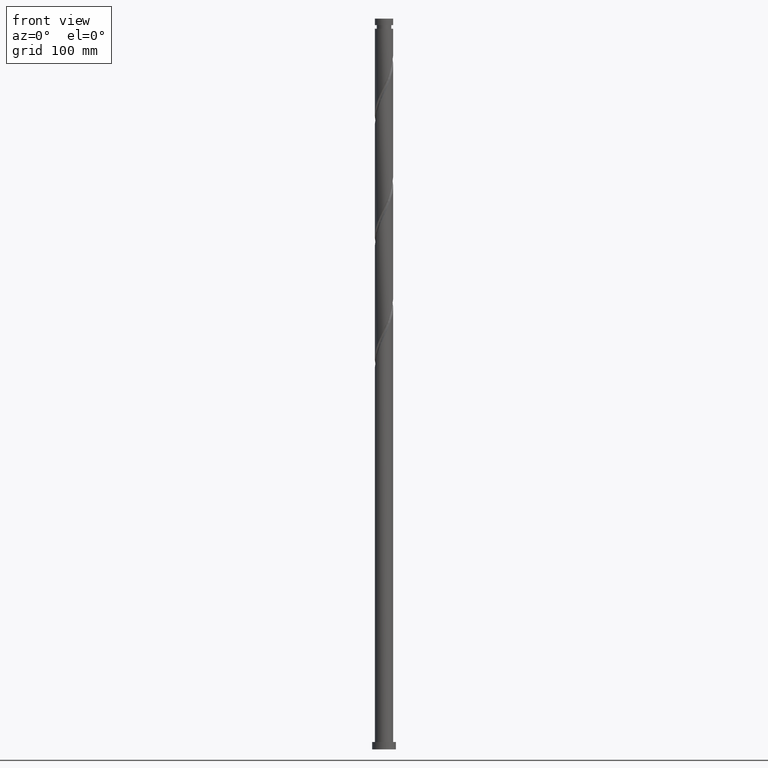
[diagram: clean part render]
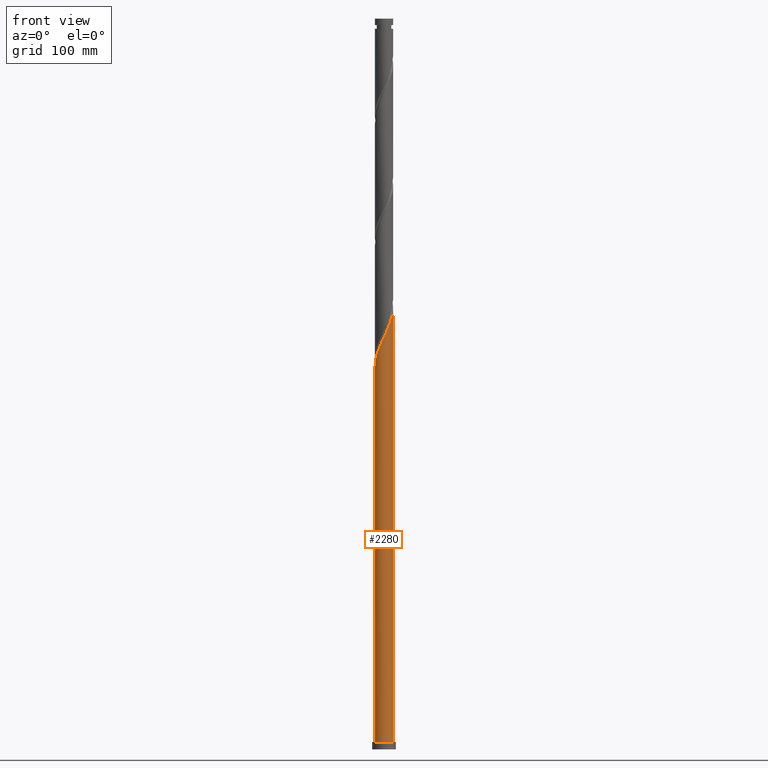
[diagram: same view with one face highlighted and labeled with its STEP entity id]
A machine part, front view. The second image highlights one B-rep face of the part: STEP entity #2280.
In plain terms, the highlighted cylindrical surface (edge-blend (fillet) strip) has radius 10 mm, axis along (-0, -0, -1).
Its self-contained STEP definition (entity closure, byte-faithful):
#8 = CARTESIAN_POINT ( 'NONE',  ( -9.833586684089031138, -1.996794941299504966, 422.2317623345016386 ) ) ;
#19 = CARTESIAN_POINT ( 'NONE',  ( -10.00000000000001421, 1.612300956158166349E-15, 417.9798301337130511 ) ) ;
#84 = DIRECTION ( 'NONE',  ( -0.000000000000000000, -0.000000000000000000, -1.000000000000000000 ) ) ;
#117 = CARTESIAN_POINT ( 'NONE',  ( -10.00000000000000178, 0.000000000000000000, 8.000000000000000000 ) ) ;
#194 = CARTESIAN_POINT ( 'NONE',  ( 1.989974874213249700, -9.800000000000007816, 455.5650956678352372 ) ) ;
#197 = CIRCLE ( 'NONE', #385, 10.00000000000000178 ) ;
#249 = CARTESIAN_POINT ( 'NONE',  ( 10.00000000000000178, 1.224646799147353454E-15, 800.0000000000000000 ) ) ;
#256 = CARTESIAN_POINT ( 'NONE',  ( 10.00000000000000178, 1.224646799147353454E-15, 8.000000000000000000 ) ) ;
#277 = LINE ( 'NONE', #836, #1109 ) ;
#334 = DIRECTION ( 'NONE',  ( 1.000000000000000000, 0.000000000000000000, 0.000000000000000000 ) ) ;
#357 = CARTESIAN_POINT ( 'NONE',  ( 9.988632557599636641, -0.4766756017049229577, 483.6352711064316736 ) ) ;
#385 = AXIS2_PLACEMENT_3D ( 'NONE', #2324, #1781, #334 ) ;
#392 = CARTESIAN_POINT ( 'NONE',  ( 4.349696364606918664, -9.042497367808181252, 460.8282535625720016 ) ) ;
#402 = CARTESIAN_POINT ( 'NONE',  ( 7.589654370281420093, -6.511309126409864589, 469.6001833871334838 ) ) ;
#479 = CARTESIAN_POINT ( 'NONE',  ( 10.00000000000001421, -3.433603888114613474E-15, 484.6464968003797935 ) ) ;
#542 = EDGE_CURVE ( 'NONE', #1594, #1086, #2094, .T. ) ;
#548 = CARTESIAN_POINT ( 'NONE',  ( -8.652417576018633483, -5.081563460323631709, 429.2493061941510177 ) ) ;
#559 = CARTESIAN_POINT ( 'NONE',  ( -5.191017261092582658, -8.587197267218872554, 439.7756219836246601 ) ) ;
#579 = CARTESIAN_POINT ( 'NONE',  ( 6.414415119194313064, -7.671719408232525517, 466.0914114573089364 ) ) ;
#592 = ORIENTED_EDGE ( 'NONE', *, *, #720, .T. ) ;
#675 = EDGE_LOOP ( 'NONE', ( #1445, #2140, #592, #1617 ) ) ;
#720 = EDGE_CURVE ( 'NONE', #1639, #768, #277, .T. ) ;
#732 = CARTESIAN_POINT ( 'NONE',  ( -3.706812335779580359, -9.324492448300055969, 443.2843939134492075 ) ) ;
#745 = CARTESIAN_POINT ( 'NONE',  ( -5.862321014293812027, -8.101431498529713338, 438.0212360187124432 ) ) ;
#755 = CARTESIAN_POINT ( 'NONE',  ( 1.177923722195732159, -9.964894019294989747, 453.8107097029229067 ) ) ;
#766 = CARTESIAN_POINT ( 'NONE',  ( -2.914153784332338404, -9.565966115414674675, 445.0387798783614812 ) ) ;
#768 = VERTEX_POINT ( 'NONE', #117 ) ;
#777 = CARTESIAN_POINT ( 'NONE',  ( 2.802026026230763023, -9.635105980705032991, 457.3194816327475110 ) ) ;
#818 = EDGE_CURVE ( 'NONE', #768, #1086, #197, .T. ) ;
#836 = CARTESIAN_POINT ( 'NONE',  ( -10.00000000000000178, 0.000000000000000000, 800.0000000000000000 ) ) ;
#908 = CARTESIAN_POINT ( 'NONE',  ( 5.778718324968767028, -8.203232998748886118, 464.3370254923966627 ) ) ;
#917 = CARTESIAN_POINT ( 'NONE',  ( -0.4783092703628256670, -10.02286572557856204, 450.3019377730983592 ) ) ;
#935 = CARTESIAN_POINT ( 'NONE',  ( -9.602197208846458665, -2.792455686742681298, 423.9861482994141966 ) ) ;
#1017 = FACE_OUTER_BOUND ( 'NONE', #675, .T. ) ;
#1086 = VERTEX_POINT ( 'NONE', #256 ) ;
#1087 = CARTESIAN_POINT ( 'NONE',  ( -2.121495232885096893, -9.807439782529295158, 446.7931658432738118 ) ) ;
#1107 = CARTESIAN_POINT ( 'NONE',  ( 9.598750715611075179, -2.924141209081444703, 478.3721132116947956 ) ) ;
#1109 = VECTOR ( 'NONE', #1405, 1000.000000000000000 ) ;
#1128 = CARTESIAN_POINT ( 'NONE',  ( -9.011612654811258949, -4.334839946254744447, 427.4949202292388009 ) ) ;
#1266 = CARTESIAN_POINT ( 'NONE',  ( 0.3498072259164552444, -9.993879872436775003, 452.0563237380106898 ) ) ;
#1289 = CARTESIAN_POINT ( 'NONE',  ( 9.292644579133634508, -3.694151692323763836, 476.6177272467826356 ) ) ;
#1298 = CARTESIAN_POINT ( 'NONE',  ( -4.448914798436081952, -8.955844857759466038, 441.5300079485369906 ) ) ;
#1308 = CARTESIAN_POINT ( 'NONE',  ( -10.00000000000001243, -0.5889864175343447750, 419.2303572478983256 ) ) ;
#1368 = DIRECTION ( 'NONE',  ( -0.000000000000000000, -0.000000000000000000, -1.000000000000000000 ) ) ;
#1405 = DIRECTION ( 'NONE',  ( -0.000000000000000000, -0.000000000000000000, -1.000000000000000000 ) ) ;
#1416 =( BOUNDED_CURVE ( )  B_SPLINE_CURVE ( 2, ( #19, #1308, #1635, #8, #935, #2186, #1128, #548, #1834, #2042, #1868, #2229, #745, #559, #1298, #732, #766, #1087, #1679, #917, #1266, #755, #194, #777, #1857, #392, #2015, #908, #579, #1821, #402, #1479, #1468, #2212, #1289, #1107, #2024, #2003, #357, #1455, #2221 ),
 .UNSPECIFIED., .F., .F. ) 
 B_SPLINE_CURVE_WITH_KNOTS ( ( 3, 2, 2, 2, 2, 2, 2, 2, 2, 2, 2, 2, 2, 2, 2, 2, 2, 2, 2, 2, 3 ),
 ( 0.05452958095159560203, 0.05921052631578949121, 0.06578947368421050879, 0.07236842105263152636, 0.07894736842105265495, 0.08552631578947367252, 0.09210526315789469010, 0.09868421052631581869, 0.1052631578947368363, 0.1118421052631578538, 0.1184210526315789824, 0.1250000000000000000, 0.1315789473684210176, 0.1381578947368421462, 0.1447368421052631637, 0.1513157894736841813, 0.1578947368421053099, 0.1644736842105263275, 0.1710526315789473450, 0.1776315789473684736, 0.1795295809515957408 ),
 .UNSPECIFIED. ) 
 CURVE ( )  GEOMETRIC_REPRESENTATION_ITEM ( )  RATIONAL_B_SPLINE_CURVE ( ( 0.9078162034606180875, 0.9068816855934254129, 0.9090909090909469192, 0.9059859027333740933, 0.9090909090909469192, 0.9059859027333740933, 0.9090909090909469192, 0.9059859027333740933, 0.9090909090909469192, 0.9059859027333740933, 0.9090909090909469192, 0.9059859027333740933, 0.9090909090909469192, 0.9059859027333740933, 0.9090909090909469192, 0.9059859027333740933, 0.9090909090909469192, 0.9059859027333740933, 0.9090909090909469192, 0.9059859027333740933, 0.9090909090909469192, 0.9059859027333740933, 0.9090909090909469192, 0.9059859027333740933, 0.9090909090909469192, 0.9059859027333740933, 0.9090909090909469192, 0.9059859027333740933, 0.9090909090909469192, 0.9059859027333740933, 0.9090909090909469192, 0.9059859027333740933, 0.9090909090909469192, 0.9059859027333740933, 0.9090909090909469192, 0.9059859027333740933, 0.9090909090909469192, 0.9059859027333740933, 0.9090909090909469192, 0.9081951262308955997, 0.9078162034606180875 ) ) 
 REPRESENTATION_ITEM ( '' )  );
#1445 = ORIENTED_EDGE ( 'NONE', *, *, #542, .F. ) ;
#1455 = CARTESIAN_POINT ( 'NONE',  ( 10.00000000000001243, -0.2384733424516562450, 484.1401737819396089 ) ) ;
#1468 = CARTESIAN_POINT ( 'NONE',  ( 8.557867634899581688, -5.173287305334827835, 473.1089553169581450 ) ) ;
#1479 = CARTESIAN_POINT ( 'NONE',  ( 8.129196827142978421, -5.882412435103561599, 471.3545693520457576 ) ) ;
#1594 = VERTEX_POINT ( 'NONE', #479 ) ;
#1617 = ORIENTED_EDGE ( 'NONE', *, *, #818, .T. ) ;
#1635 = CARTESIAN_POINT ( 'NONE',  ( -9.930858854084291920, -1.173900515484965545, 420.4773763695896491 ) ) ;
#1639 = VERTEX_POINT ( 'NONE', #2292 ) ;
#1643 = VECTOR ( 'NONE', #84, 1000.000000000000000 ) ;
#1679 = CARTESIAN_POINT ( 'NONE',  ( -1.299902251623958227, -9.915152754053927708, 448.5475518081860855 ) ) ;
#1741 = CARTESIAN_POINT ( 'NONE',  ( 0.000000000000000000, 0.000000000000000000, 800.0000000000000000 ) ) ;
#1753 = DIRECTION ( 'NONE',  ( -1.000000000000000000, 0.000000000000000000, 0.000000000000000000 ) ) ;
#1781 = DIRECTION ( 'NONE',  ( 0.000000000000000000, 0.000000000000000000, 1.000000000000000000 ) ) ;
#1821 = CARTESIAN_POINT ( 'NONE',  ( 7.050111913419858212, -7.140205817716171133, 467.8457974222212101 ) ) ;
#1834 = CARTESIAN_POINT ( 'NONE',  ( -8.175214799073742711, -5.758981072117351552, 431.0036921590632915 ) ) ;
#1857 = CARTESIAN_POINT ( 'NONE',  ( 3.575861195418843952, -9.338801674256608010, 459.0738675976597847 ) ) ;
#1868 = CARTESIAN_POINT ( 'NONE',  ( -7.115818394811944003, -7.026032206875813202, 434.5124640888878957 ) ) ;
#1910 = EDGE_CURVE ( 'NONE', #1639, #1594, #1416, .T. ) ;
#2003 = CARTESIAN_POINT ( 'NONE',  ( 9.949134091119727685, -1.304357293080275815, 481.8808851415195136 ) ) ;
#2015 = CARTESIAN_POINT ( 'NONE',  ( 5.064207344787845066, -8.622865183278531021, 462.5826395274843321 ) ) ;
#2024 = CARTESIAN_POINT ( 'NONE',  ( 9.773942403365401432, -2.114249251080861480, 480.1264991766071830 ) ) ;
#2042 = CARTESIAN_POINT ( 'NONE',  ( -7.698012022128847498, -6.436398683911074059, 432.7580781239756220 ) ) ;
#2094 = LINE ( 'NONE', #249, #1643 ) ;
#2140 = ORIENTED_EDGE ( 'NONE', *, *, #1910, .F. ) ;
#2186 = CARTESIAN_POINT ( 'NONE',  ( -9.370807733603882639, -3.588116432185857185, 425.7405342643264134 ) ) ;
#2193 = AXIS2_PLACEMENT_3D ( 'NONE', #1741, #1368, #1753 ) ;
#2212 = CARTESIAN_POINT ( 'NONE',  ( 8.986538442656188508, -4.464162175566089630, 474.8633412818702482 ) ) ;
#2221 = CARTESIAN_POINT ( 'NONE',  ( 10.00000000000001421, -3.433603888114613474E-15, 484.6464968003797935 ) ) ;
#2229 = CARTESIAN_POINT ( 'NONE',  ( -6.533624767495038732, -7.615665729840555009, 436.2668500538002263 ) ) ;
#2280 = ADVANCED_FACE ( 'NONE', ( #1017 ), #2339, .T. ) ;
#2292 = CARTESIAN_POINT ( 'NONE',  ( -10.00000000000001421, 1.612300956158166349E-15, 417.9798301337130511 ) ) ;
#2324 = CARTESIAN_POINT ( 'NONE',  ( 0.000000000000000000, 0.000000000000000000, 8.000000000000000000 ) ) ;
#2339 = CYLINDRICAL_SURFACE ( 'NONE', #2193, 10.00000000000000178 ) ;